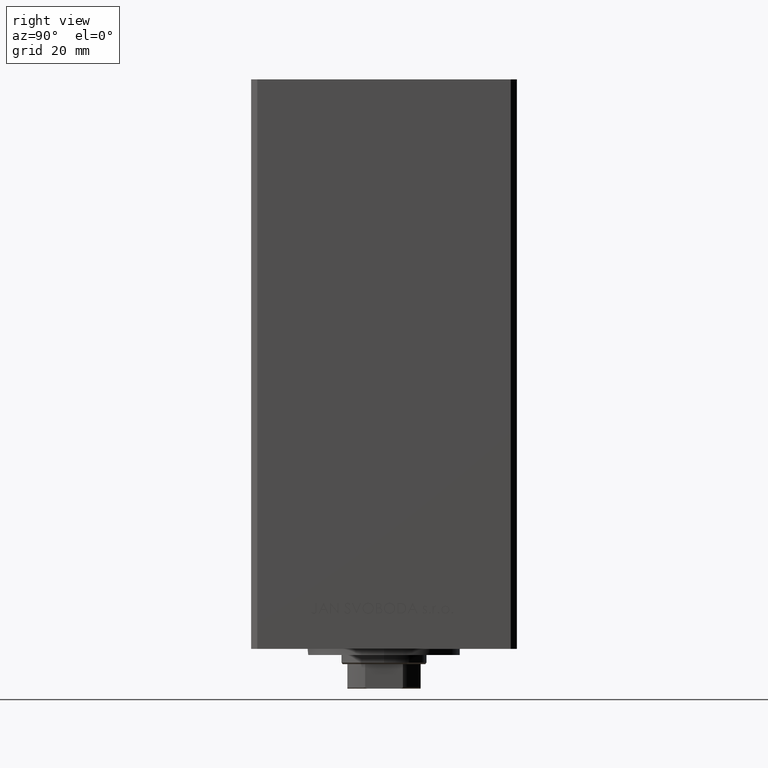
[diagram: clean part render]
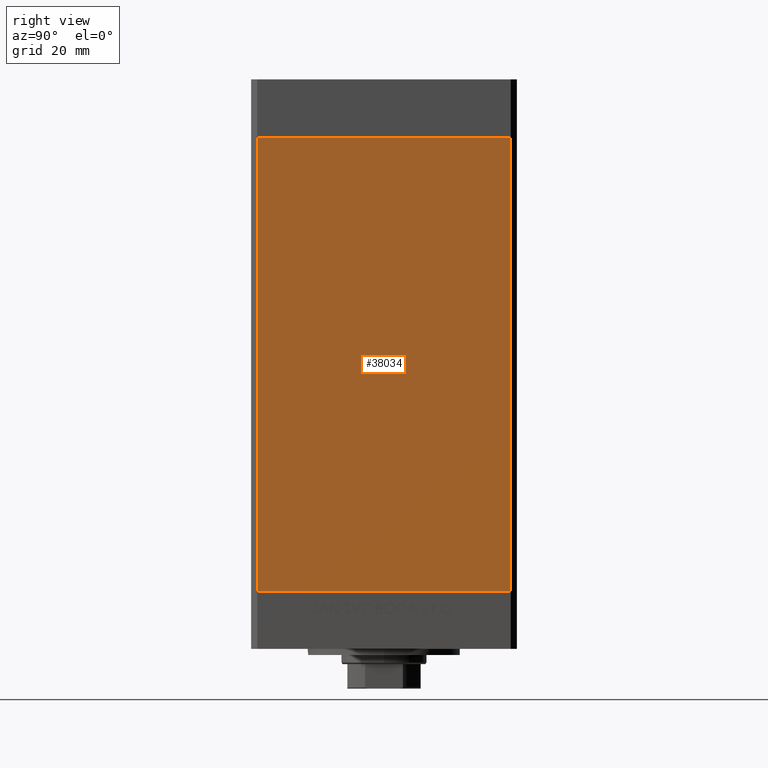
[diagram: same view with one face highlighted and labeled with its STEP entity id]
A machine part, right view. The second image highlights one B-rep face of the part: STEP entity #38034.
In plain terms, the highlighted planar face has unit normal (1, -0, 0).
Its self-contained STEP definition (entity closure, byte-faithful):
#714 = VERTEX_POINT ( 'NONE', #14632 ) ;
#1228 = ORIENTED_EDGE ( 'NONE', *, *, #41233, .F. ) ;
#3727 = EDGE_LOOP ( 'NONE', ( #1228, #29468, #38948, #11652 ) ) ;
#5738 = AXIS2_PLACEMENT_3D ( 'NONE', #28932, #17730, #17981 ) ;
#6355 = VERTEX_POINT ( 'NONE', #19966 ) ;
#7433 = CARTESIAN_POINT ( 'NONE',  ( 50.00000000000001421, 41.49999999999999289, 148.5000000000000000 ) ) ;
#11652 = ORIENTED_EDGE ( 'NONE', *, *, #36907, .T. ) ;
#11844 = DIRECTION ( 'NONE',  ( -3.344045254895050973E-16, -1.000000000000000000, 0.000000000000000000 ) ) ;
#12346 = LINE ( 'NONE', #30991, #39143 ) ;
#14200 = DIRECTION ( 'NONE',  ( -0.000000000000000000, -0.000000000000000000, -1.000000000000000000 ) ) ;
#14632 = CARTESIAN_POINT ( 'NONE',  ( 49.99999999999998579, -41.49999999999999289, 148.5000000000000000 ) ) ;
#17730 = DIRECTION ( 'NONE',  ( 1.000000000000000000, -3.344045254895050480E-16, 0.000000000000000000 ) ) ;
#17981 = DIRECTION ( 'NONE',  ( 3.344045254895050480E-16, 1.000000000000000000, 0.000000000000000000 ) ) ;
#19835 = CARTESIAN_POINT ( 'NONE',  ( 50.00000000000001421, 41.49999999999999289, 0.000000000000000000 ) ) ;
#19966 = CARTESIAN_POINT ( 'NONE',  ( 50.00000000000001421, 41.49999999999999289, 148.5000000000000000 ) ) ;
#21474 = VECTOR ( 'NONE', #45469, 1000.000000000000000 ) ;
#24943 = FACE_OUTER_BOUND ( 'NONE', #3727, .T. ) ;
#25232 = CARTESIAN_POINT ( 'NONE',  ( 49.99999999999998579, -41.49999999999999289, 148.5000000000000000 ) ) ;
#28061 = EDGE_CURVE ( 'NONE', #6355, #714, #45233, .T. ) ;
#28625 = CARTESIAN_POINT ( 'NONE',  ( 50.00000000000001421, 41.49999999999999289, 148.5000000000000000 ) ) ;
#28932 = CARTESIAN_POINT ( 'NONE',  ( 50.00000000000001421, 41.49999999999999289, 148.5000000000000000 ) ) ;
#29468 = ORIENTED_EDGE ( 'NONE', *, *, #34717, .F. ) ;
#30330 = VECTOR ( 'NONE', #14200, 1000.000000000000000 ) ;
#30991 = CARTESIAN_POINT ( 'NONE',  ( 50.00000000000001421, 41.49999999999999289, 0.000000000000000000 ) ) ;
#31678 = VERTEX_POINT ( 'NONE', #19835 ) ;
#33451 = DIRECTION ( 'NONE',  ( -0.000000000000000000, -0.000000000000000000, -1.000000000000000000 ) ) ;
#34390 = VECTOR ( 'NONE', #33451, 1000.000000000000000 ) ;
#34717 = EDGE_CURVE ( 'NONE', #6355, #31678, #48269, .T. ) ;
#36907 = EDGE_CURVE ( 'NONE', #714, #45150, #44151, .T. ) ;
#37586 = CARTESIAN_POINT ( 'NONE',  ( 49.99999999999998579, -41.49999999999999289, 0.000000000000000000 ) ) ;
#38034 = ADVANCED_FACE ( 'NONE', ( #24943 ), #47594, .T. ) ;
#38948 = ORIENTED_EDGE ( 'NONE', *, *, #28061, .T. ) ;
#39143 = VECTOR ( 'NONE', #11844, 1000.000000000000000 ) ;
#41233 = EDGE_CURVE ( 'NONE', #31678, #45150, #12346, .T. ) ;
#44151 = LINE ( 'NONE', #25232, #34390 ) ;
#45150 = VERTEX_POINT ( 'NONE', #37586 ) ;
#45233 = LINE ( 'NONE', #7433, #21474 ) ;
#45469 = DIRECTION ( 'NONE',  ( -3.344045254895050973E-16, -1.000000000000000000, 0.000000000000000000 ) ) ;
#47594 = PLANE ( 'NONE',  #5738 ) ;
#48269 = LINE ( 'NONE', #28625, #30330 ) ;